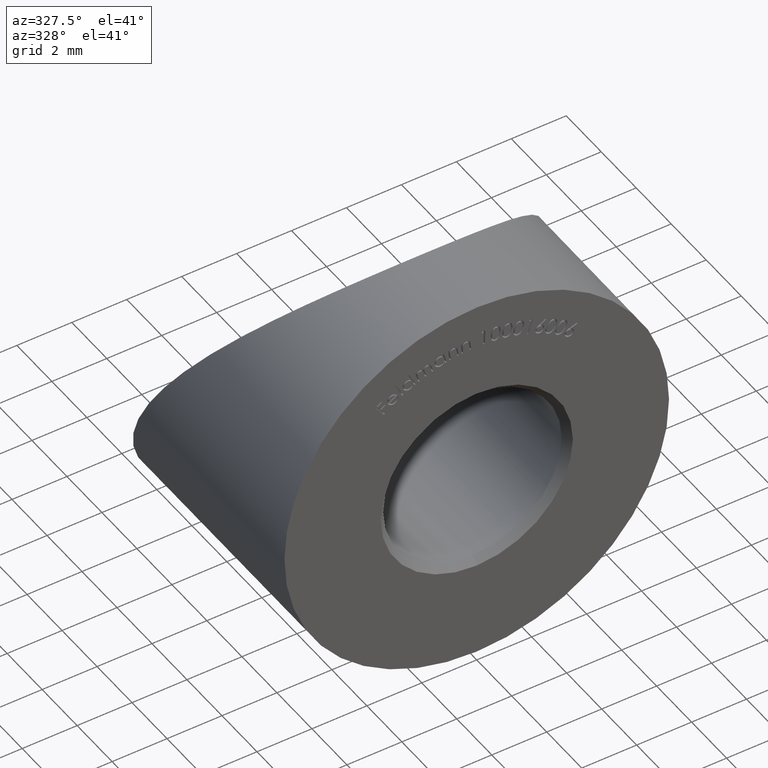
[diagram: clean part render]
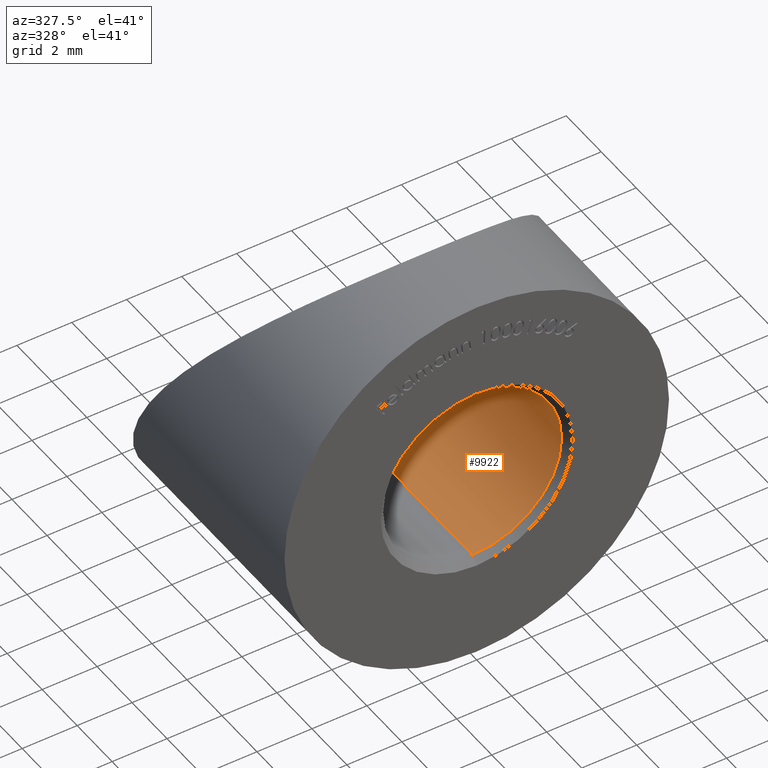
[diagram: same view with one face highlighted and labeled with its STEP entity id]
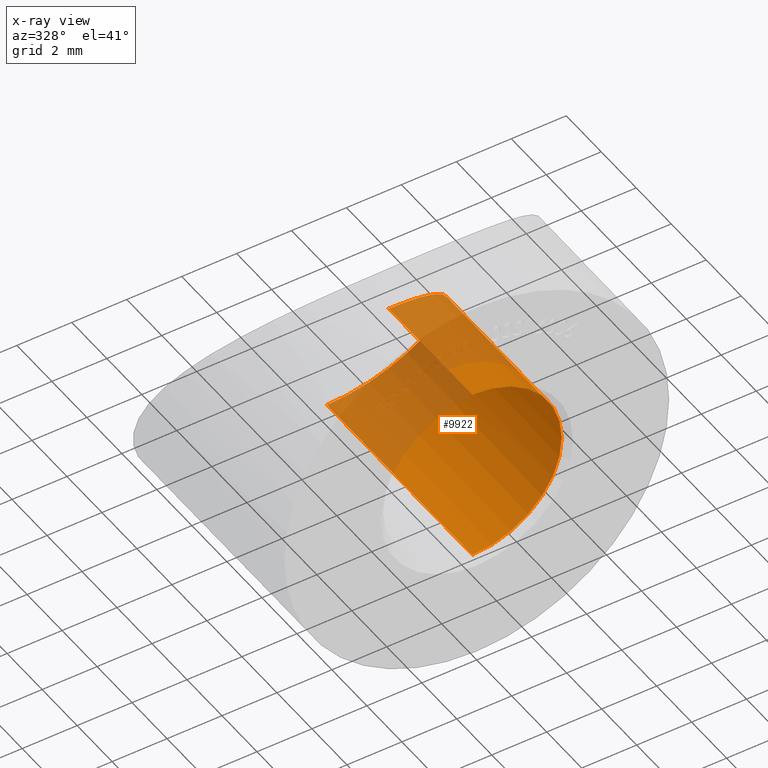
[diagram: x-ray of the same camera — body ghosted, the highlighted face saturated]
A machine part, auxiliary view. The second image highlights one B-rep face of the part: STEP entity #9922.
The next image is the same camera in x-ray: the body ghosted, the highlighted face saturated — about 39% of this face is hidden behind the body in this view.
In plain terms, the highlighted cylindrical surface (partial cylindrical patch) has radius 3.25 mm, axis along (-0, -1, -0).
Its self-contained STEP definition (entity closure, byte-faithful):
#271 = ORIENTED_EDGE ( 'NONE', *, *, #6406, .T. ) ;
#486 = VERTEX_POINT ( 'NONE', #12079 ) ;
#521 = CARTESIAN_POINT ( 'NONE',  ( 3.979939262421096800E-016, 5.035393976175074100, 3.250000000000000400 ) ) ;
#634 = CARTESIAN_POINT ( 'NONE',  ( 2.892975460072027400, 7.837656305663477600, -1.496116223524696100 ) ) ;
#670 = AXIS2_PLACEMENT_3D ( 'NONE', #7599, #6440, #1265 ) ;
#763 = CYLINDRICAL_SURFACE ( 'NONE', #670, 3.250000000000000400 ) ;
#1265 = DIRECTION ( 'NONE',  ( 0.0000000000000000000, 0.0000000000000000000, -1.000000000000000000 ) ) ;
#1657 = CARTESIAN_POINT ( 'NONE',  ( 2.203863897364467700, 5.628380550321610400, 2.397548882988722600 ) ) ;
#1820 = CARTESIAN_POINT ( 'NONE',  ( 3.241054785044858600, 7.254448937073717300, -0.3147625908589871100 ) ) ;
#2063 = CIRCLE ( 'NONE', #11795, 3.250000000000000400 ) ;
#2694 = LINE ( 'NONE', #5476, #13138 ) ;
#2719 = CARTESIAN_POINT ( 'NONE',  ( 2.249620588345239800, 8.214595940458608000, -2.355592107772810800 ) ) ;
#3401 = DIRECTION ( 'NONE',  ( -0.0000000000000000000, -1.000000000000000000, -0.0000000000000000000 ) ) ;
#3643 = VERTEX_POINT ( 'NONE', #9558 ) ;
#3651 = DIRECTION ( 'NONE',  ( 0.0000000000000000000, -1.000000000000000000, 0.0000000000000000000 ) ) ;
#3725 = CARTESIAN_POINT ( 'NONE',  ( 1.118984921809289500, 8.493695850747530000, -3.059561037267732400 ) ) ;
#3766 = CARTESIAN_POINT ( 'NONE',  ( 0.8982085508059707300, 5.120103049954381400, 3.131488643865544000 ) ) ;
#3805 = CARTESIAN_POINT ( 'NONE',  ( 2.085652600937257400, 8.274891025992626900, -2.502527301729229300 ) ) ;
#4145 = CARTESIAN_POINT ( 'NONE',  ( 0.0000000000000000000, 11.21802027601583900, -3.250000000000000400 ) ) ;
#4197 = ORIENTED_EDGE ( 'NONE', *, *, #12271, .F. ) ;
#4213 = LINE ( 'NONE', #4145, #11860 ) ;
#4797 = CARTESIAN_POINT ( 'NONE',  ( 3.155069600915283400, 6.592192222812481200, 0.8763184489439079800 ) ) ;
#4843 = CARTESIAN_POINT ( 'NONE',  ( 2.848544604854979800, 6.141236594280929500, 1.614989735178143900 ) ) ;
#4969 = CARTESIAN_POINT ( 'NONE',  ( 3.125334148901368600, 7.560517536100491900, -0.9155091929148538900 ) ) ;
#5476 = CARTESIAN_POINT ( 'NONE',  ( 3.980102097228898200E-016, 11.21802027601583900, 3.250000000000000400 ) ) ;
#5852 = CARTESIAN_POINT ( 'NONE',  ( 1.510087044550711500, 5.293088815966766200, 2.886233063069130600 ) ) ;
#5895 = CARTESIAN_POINT ( 'NONE',  ( 2.982923574716027200, 7.749444621676289600, -1.306919114560653100 ) ) ;
#6028 = CARTESIAN_POINT ( 'NONE',  ( 1.529591533842127100, 8.423463584265766400, -2.876350245641486200 ) ) ;
#6406 = EDGE_CURVE ( 'NONE', #12750, #486, #4213, .T. ) ;
#6440 = DIRECTION ( 'NONE',  ( -0.0000000000000000000, -1.000000000000000000, -0.0000000000000000000 ) ) ;
#6868 = CARTESIAN_POINT ( 'NONE',  ( 2.673492920481357800, 8.002228680888299200, -1.860136116258381600 ) ) ;
#6954 = CARTESIAN_POINT ( 'NONE',  ( 0.2271633659222790900, 5.035393976175071500, 3.250000000000001300 ) ) ;
#7001 = CARTESIAN_POINT ( 'NONE',  ( 1.108177772620068600, 5.168757365260226800, 3.063110543343831300 ) ) ;
#7599 = CARTESIAN_POINT ( 'NONE',  ( 0.0000000000000000000, 11.21802027601583900, 0.0000000000000000000 ) ) ;
#7800 = EDGE_LOOP ( 'NONE', ( #4197, #13452, #271, #9572 ) ) ;
#7945 = CARTESIAN_POINT ( 'NONE',  ( 0.4586673354559900900, 5.053148332071860900, 3.225309908022099900 ) ) ;
#7994 = CARTESIAN_POINT ( 'NONE',  ( 3.254241914500597400, 7.147822791705943100, -0.1140462332643476800 ) ) ;
#8017 = B_SPLINE_CURVE_WITH_KNOTS ( 'NONE', 3,
 ( #11136, #9067, #9204, #10169, #3725, #6028, #12261, #3805, #2719, #10127, #6868, #634, #5895, #4969, #8125, #1820, #7994, #8079, #4797, #4843, #10246, #1657, #11228, #13329, #5852, #7001, #3766, #7945, #6954, #11179 ),
 .UNSPECIFIED., .F., .F.,
 ( 4, 2, 2, 2, 2, 2, 2, 2, 2, 2, 2, 2, 2, 2, 4 ),
 ( 0.0000000000000000000, 0.0006810113966382381300, 0.001362022793276476300, 0.002043034189914714600, 0.002724045586552952500, 0.003405056983191190800, 0.004086068379829429200, 0.004767079776467666700, 0.005448091173105905000, 0.006810113966382383400, 0.008172136759658861800, 0.008853148156297100200, 0.009534159552935338500, 0.01021517094957357700, 0.01089618234621181500 ),
 .UNSPECIFIED. ) ;
#8079 = CARTESIAN_POINT ( 'NONE',  ( 3.237992543934536700, 6.816878571240953200, 0.4901960945188390500 ) ) ;
#8125 = CARTESIAN_POINT ( 'NONE',  ( 3.176908576553936200, 7.460407552193814200, -0.7146772029976108400 ) ) ;
#8973 = VERTEX_POINT ( 'NONE', #521 ) ;
#9067 = CARTESIAN_POINT ( 'NONE',  ( 0.2303349561270087700, 8.564606023824930900, -3.250000000000000900 ) ) ;
#9204 = CARTESIAN_POINT ( 'NONE',  ( 0.4562360468771661800, 8.555727348345833100, -3.225789418490302700 ) ) ;
#9294 = CARTESIAN_POINT ( 'NONE',  ( 0.0000000000000000000, 8.564606023824930900, -3.250000000000000400 ) ) ;
#9489 = DIRECTION ( 'NONE',  ( -0.0000000000000000000, -1.000000000000000000, -0.0000000000000000000 ) ) ;
#9506 = FACE_OUTER_BOUND ( 'NONE', #7800, .T. ) ;
#9558 = CARTESIAN_POINT ( 'NONE',  ( 3.980102097228898200E-016, 0.2500000000000002200, 3.250000000000000400 ) ) ;
#9572 = ORIENTED_EDGE ( 'NONE', *, *, #9589, .T. ) ;
#9589 = EDGE_CURVE ( 'NONE', #486, #3643, #2063, .T. ) ;
#9922 = ADVANCED_FACE ( 'NONE', ( #9506 ), #763, .F. ) ;
#9964 = DIRECTION ( 'NONE',  ( 0.0000000000000000000, 0.0000000000000000000, 1.000000000000000000 ) ) ;
#10127 = CARTESIAN_POINT ( 'NONE',  ( 2.542869052951185300, 8.078781806277030200, -2.035540210669265300 ) ) ;
#10169 = CARTESIAN_POINT ( 'NONE',  ( 0.8995589247164902400, 8.520529899350510300, -3.131239761480588200 ) ) ;
#10246 = CARTESIAN_POINT ( 'NONE',  ( 2.632985991241841600, 5.925990979870879200, 1.949592692750625500 ) ) ;
#11007 = EDGE_CURVE ( 'NONE', #12750, #8973, #8017, .T. ) ;
#11136 = CARTESIAN_POINT ( 'NONE',  ( 0.0000000000000000000, 8.564606023824930900, -3.250000000000000400 ) ) ;
#11179 = CARTESIAN_POINT ( 'NONE',  ( 3.979939262421096800E-016, 5.035393976175074100, 3.250000000000000400 ) ) ;
#11228 = CARTESIAN_POINT ( 'NONE',  ( 2.045411540383145000, 5.535642112998625700, 2.534441488414795900 ) ) ;
#11795 = AXIS2_PLACEMENT_3D ( 'NONE', #13106, #3651, #9964 ) ;
#11860 = VECTOR ( 'NONE', #9489, 1000.000000000000000 ) ;
#12079 = CARTESIAN_POINT ( 'NONE',  ( 0.0000000000000000000, 0.2500000000000002200, -3.250000000000000400 ) ) ;
#12261 = CARTESIAN_POINT ( 'NONE',  ( 1.722924635848054800, 8.380068278218020700, -2.764800239960270900 ) ) ;
#12271 = EDGE_CURVE ( 'NONE', #8973, #3643, #2694, .T. ) ;
#12750 = VERTEX_POINT ( 'NONE', #9294 ) ;
#13106 = CARTESIAN_POINT ( 'NONE',  ( 0.0000000000000000000, 0.2500000000000002200, 0.0000000000000000000 ) ) ;
#13138 = VECTOR ( 'NONE', #3401, 1000.000000000000000 ) ;
#13329 = CARTESIAN_POINT ( 'NONE',  ( 1.700208186348418200, 5.368651007330014700, 2.777839835340507600 ) ) ;
#13452 = ORIENTED_EDGE ( 'NONE', *, *, #11007, .F. ) ;